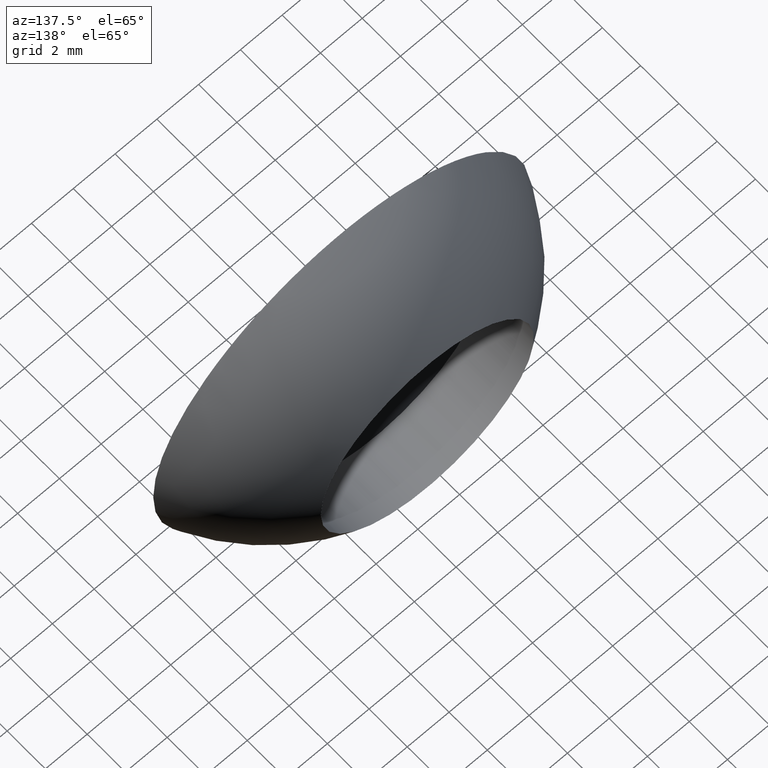
[diagram: clean part render]
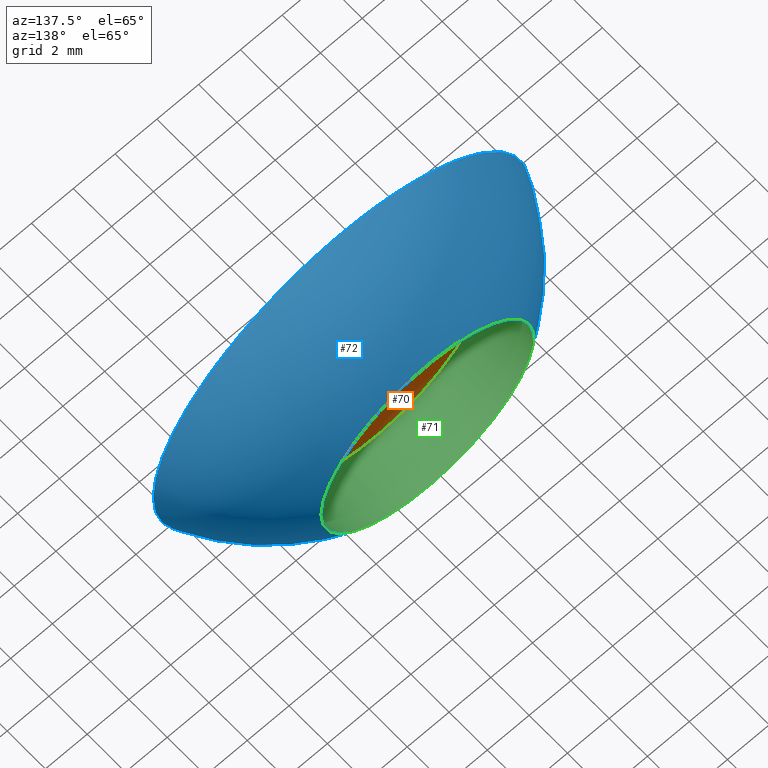
[diagram: same view with three faces highlighted in distinct colors, each labeled with its STEP entity id]
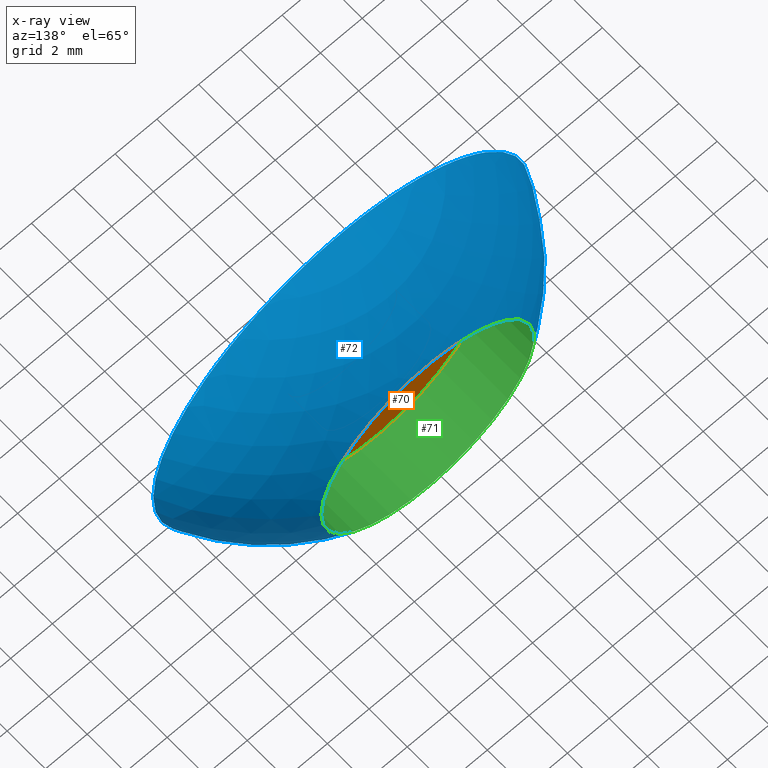
[diagram: x-ray of the same camera — body ghosted, the three highlighted faces saturated]
A machine part, auxiliary view with three faces highlighted in distinct colors.
The next image is the same camera in x-ray (body ghosted, the three faces saturated) — at least one of them is partly hidden behind the body in this view.
Their STEP definitions:

[orange] entity #70 — the highlighted planar face has unit normal (0, 1, 0).
#17=FACE_BOUND('',#28,.T.);
#22=FACE_OUTER_BOUND('',#27,.T.);
#27=EDGE_LOOP('',(#52));
#28=EDGE_LOOP('',(#53));
#37=CIRCLE('',#78,5.1);
#38=CIRCLE('',#79,2.65);
#42=VERTEX_POINT('',#111);
#43=VERTEX_POINT('',#113);
#47=EDGE_CURVE('',#42,#42,#37,.T.);
#48=EDGE_CURVE('',#43,#43,#38,.T.);
#52=ORIENTED_EDGE('',*,*,#47,.F.);
#53=ORIENTED_EDGE('',*,*,#48,.T.);
#62=PLANE('',#77);
#70=ADVANCED_FACE('',(#22,#17),#62,.T.);
#77=AXIS2_PLACEMENT_3D('',#110,#89,#90);
#78=AXIS2_PLACEMENT_3D('',#112,#91,#92);
#79=AXIS2_PLACEMENT_3D('',#114,#93,#94);
#89=DIRECTION('center_axis',(0.,1.,0.));
#90=DIRECTION('ref_axis',(0.,0.,1.));
#91=DIRECTION('center_axis',(0.,-1.,0.));
#92=DIRECTION('ref_axis',(1.,0.,0.));
#93=DIRECTION('center_axis',(0.,-1.,0.));
#94=DIRECTION('ref_axis',(1.,0.,0.));
#110=CARTESIAN_POINT('Origin',(3.875,1.8,0.));
#111=CARTESIAN_POINT('',(5.1,1.8,0.));
#112=CARTESIAN_POINT('Origin',(0.,1.8,0.));
#113=CARTESIAN_POINT('',(2.65,1.8,0.));
#114=CARTESIAN_POINT('Origin',(0.,1.8,0.));

[blue] entity #72 — the highlighted spherical surface has radius 9.7928 mm.
#14=SPHERICAL_SURFACE('',#82,9.79283411480048);
#19=FACE_BOUND('',#32,.T.);
#24=FACE_OUTER_BOUND('',#31,.T.);
#31=EDGE_LOOP('',(#56));
#32=EDGE_LOOP('',(#57));
#39=CIRCLE('',#81,5.1);
#40=CIRCLE('',#83,9.);
#44=VERTEX_POINT('',#116);
#45=VERTEX_POINT('',#119);
#49=EDGE_CURVE('',#44,#44,#39,.T.);
#50=EDGE_CURVE('',#45,#45,#40,.T.);
#56=ORIENTED_EDGE('',*,*,#50,.F.);
#57=ORIENTED_EDGE('',*,*,#49,.T.);
#72=ADVANCED_FACE('',(#24,#19),#14,.T.);
#81=AXIS2_PLACEMENT_3D('',#117,#97,#98);
#82=AXIS2_PLACEMENT_3D('',#118,#99,#100);
#83=AXIS2_PLACEMENT_3D('',#120,#101,#102);
#97=DIRECTION('center_axis',(0.,-1.,0.));
#98=DIRECTION('ref_axis',(1.,0.,0.));
#99=DIRECTION('center_axis',(6.12323399573677E-17,0.,1.));
#100=DIRECTION('ref_axis',(1.,0.,0.));
#101=DIRECTION('center_axis',(0.,-1.,0.));
#102=DIRECTION('ref_axis',(1.,0.,0.));
#116=CARTESIAN_POINT('',(5.1,4.5,0.));
#117=CARTESIAN_POINT('Origin',(0.,4.5,0.));
#118=CARTESIAN_POINT('Origin',(0.,-3.86,0.));
#119=CARTESIAN_POINT('',(9.,0.,0.));
#120=CARTESIAN_POINT('Origin',(0.,0.,0.));

[green] entity #71 — the highlighted cylindrical surface (bore or boss wall) has radius 5.1 mm, axis along (0, -1, 0).
#15=CYLINDRICAL_SURFACE('',#80,5.1);
#18=FACE_BOUND('',#30,.T.);
#23=FACE_OUTER_BOUND('',#29,.T.);
#29=EDGE_LOOP('',(#54));
#30=EDGE_LOOP('',(#55));
#37=CIRCLE('',#78,5.1);
#39=CIRCLE('',#81,5.1);
#42=VERTEX_POINT('',#111);
#44=VERTEX_POINT('',#116);
#47=EDGE_CURVE('',#42,#42,#37,.T.);
#49=EDGE_CURVE('',#44,#44,#39,.T.);
#54=ORIENTED_EDGE('',*,*,#49,.F.);
#55=ORIENTED_EDGE('',*,*,#47,.T.);
#71=ADVANCED_FACE('',(#23,#18),#15,.F.);
#78=AXIS2_PLACEMENT_3D('',#112,#91,#92);
#80=AXIS2_PLACEMENT_3D('',#115,#95,#96);
#81=AXIS2_PLACEMENT_3D('',#117,#97,#98);
#91=DIRECTION('center_axis',(0.,-1.,0.));
#92=DIRECTION('ref_axis',(1.,0.,0.));
#95=DIRECTION('center_axis',(0.,-1.,0.));
#96=DIRECTION('ref_axis',(1.,0.,0.));
#97=DIRECTION('center_axis',(0.,-1.,0.));
#98=DIRECTION('ref_axis',(1.,0.,0.));
#111=CARTESIAN_POINT('',(5.1,1.8,0.));
#112=CARTESIAN_POINT('Origin',(0.,1.8,0.));
#115=CARTESIAN_POINT('Origin',(0.,3.15,0.));
#116=CARTESIAN_POINT('',(5.1,4.5,0.));
#117=CARTESIAN_POINT('Origin',(0.,4.5,0.));